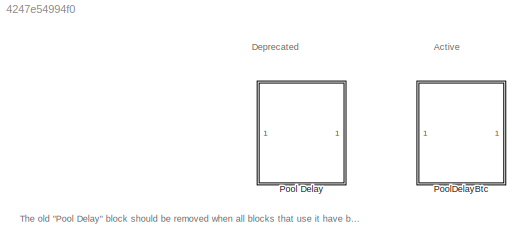
MODEL slx_4247e54994f0
KIND library
CONFIG AbsTol = auto
CONFIG EnableMultiTasking = off
CONFIG FixedStep = auto
CONFIG MaxStep = auto
CONFIG MinStep = auto
CONFIG RelTol = 1e-3
CONFIG SampleTimeConstraint = Unconstrained
CONFIG SolverName = VariableStepAuto
CONFIG StartTime = 0.0
CONFIG StopTime = 10.0
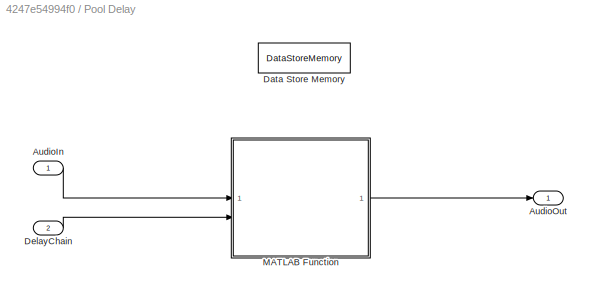
BLOCK [SubSystem] Pool Delay
BLOCK [Inport] Pool Delay/AudioIn
BLOCK [Outport] Pool Delay/AudioOut
  VectorParamsAs1DForOutWhenUnconnected = off
BLOCK [DataStoreMemory] Pool Delay/Data Store Memory
  DataStoreName = delayBuffer
  InitialValue = zeros(maxTotalDelay,1)
  OutDataTypeStr = single
  ReadBeforeWriteMsg = warning
  ShowAdditionalParam = off
  SignalType = real
  WriteAfterReadMsg = warning
  WriteAfterWriteMsg = warning
BLOCK [Inport] Pool Delay/DelayChain
  Port = 2
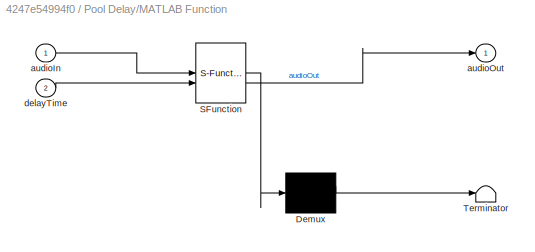
BLOCK [SubSystem] Pool Delay/MATLAB Function
  ErrorFcn = Stateflow.Translate.translate
  PermitHierarchicalResolution = ExplicitOnly
  SFBlockType = MATLAB Function
  TreatAsAtomicUnit = on
BLOCK [Demux] Pool Delay/MATLAB Function/ Demux 
  Outputs = 1
BLOCK [S-Function] Pool Delay/MATLAB Function/ SFunction 
  EnableBusSupport = off
  FunctionName = sf_sfun
  Parameters = maxTotalDelay
  PortCounts = [2 2]
  SFcnIsStateOwnerBlock = off
  SFunctionDeploymentMode = off
  Tag = Stateflow S-Function 5
BLOCK [Terminator] Pool Delay/MATLAB Function/ Terminator 
BLOCK [Inport] Pool Delay/MATLAB Function/audioIn
BLOCK [Outport] Pool Delay/MATLAB Function/audioOut
  VectorParamsAs1DForOutWhenUnconnected = off
BLOCK [Inport] Pool Delay/MATLAB Function/delayTime
  Port = 2
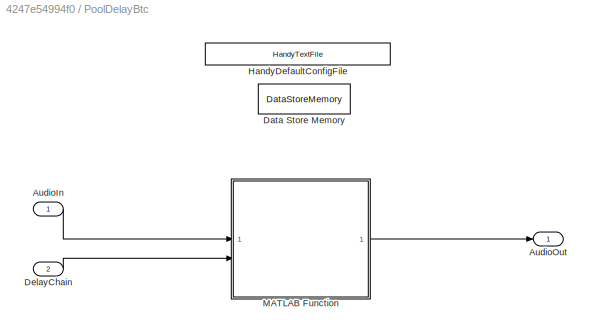
BLOCK [SubSystem] PoolDelayBtc
BLOCK [Inport] PoolDelayBtc/AudioIn
BLOCK [Outport] PoolDelayBtc/AudioOut
  VectorParamsAs1DForOutWhenUnconnected = off
BLOCK [DataStoreMemory] PoolDelayBtc/Data Store Memory
  DataStoreName = delayBuffer
  InitialValue = zeros(Config.MaxDelay,1)
  OutDataTypeStr = single
  ReadBeforeWriteMsg = warning
  ShowAdditionalParam = off
  SignalType = real
  WriteAfterReadMsg = warning
  WriteAfterWriteMsg = warning
BLOCK [Inport] PoolDelayBtc/DelayChain
  Port = 2
BLOCK [Reference] PoolDelayBtc/HandyDefaultConfigFile  REF=HandyTextFile/HandyTextFile
  SourceBlock = HandyTextFile/HandyTextFile
  SourceProductName = Bose Talaria
  SourceType = Talaria Handy Text File
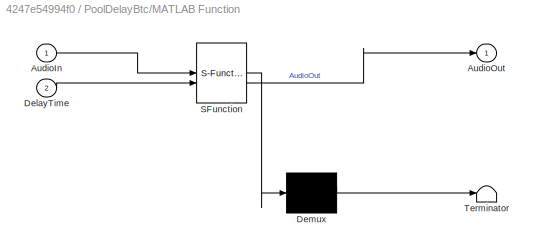
BLOCK [SubSystem] PoolDelayBtc/MATLAB Function
  ErrorFcn = Stateflow.Translate.translate
  PermitHierarchicalResolution = ExplicitOnly
  SFBlockType = MATLAB Function
  TreatAsAtomicUnit = on
BLOCK [Demux] PoolDelayBtc/MATLAB Function/ Demux 
  Outputs = 1
BLOCK [S-Function] PoolDelayBtc/MATLAB Function/ SFunction 
  EnableBusSupport = off
  FunctionName = sf_sfun
  Parameters = MaxDelay
  PortCounts = [2 2]
  SFcnIsStateOwnerBlock = off
  SFunctionDeploymentMode = off
  Tag = Stateflow S-Function 1
BLOCK [Terminator] PoolDelayBtc/MATLAB Function/ Terminator 
BLOCK [Inport] PoolDelayBtc/MATLAB Function/AudioIn
BLOCK [Outport] PoolDelayBtc/MATLAB Function/AudioOut
  VectorParamsAs1DForOutWhenUnconnected = off
BLOCK [Inport] PoolDelayBtc/MATLAB Function/DelayTime
  Port = 2
ANNOTATION (root): Deprecated
ANNOTATION (root): Active
ANNOTATION (root): The old "Pool Delay" block should be removed when all blocks that use it have been updated. As of this edit, the only known place where this block is used is in XtalkCancellation.slx
CHART PoolDelayBtc/MATLAB Function states=1 transitions=1
  STATE_LABEL 'eML_blk_kernel()'
  STATE_LABEL 'SCRIPT:\nfunction AudioOut = delay(AudioIn, DelayTime, MaxDelay)\n%[param:MaxDelay]\n\n% Our delayline lives in global variable. We treat as a circular buffer. \nglobal delayBuffer\n\n% figure out the frame size and channel count\n[frameSize, numChannels] = size(AudioIn);\nframeSize = int32(frameSize);\nMaxDelay = int32(MaxDelay);\nAudioOut = coder.nullcopy(AudioIn);\n\n% writeIndex points to our current write...<+1744ch>'
CHART Pool Delay/MATLAB Function states=1 transitions=1
  STATE_LABEL 'eML_blk_kernel()'
  STATE_LABEL 'SCRIPT:\nfunction audioOut = delay(audioIn, delayTime, maxTotalDelay)\n\n% Our delayline lives in global variable. We treat as a circular buffer. \nglobal delayBuffer\n\n% figure out the frame size and channel count\n[frameSize, numChannels] = size(audioIn);\nframeSize = int32(frameSize);\nmaxTotalDelay = int32(maxTotalDelay);\naudioOut = coder.nullcopy(audioIn);\n\n% writeIndex points to our current write lo...<+1781ch>'
CHART  states=0 transitions=0
CHART  states=0 transitions=0
